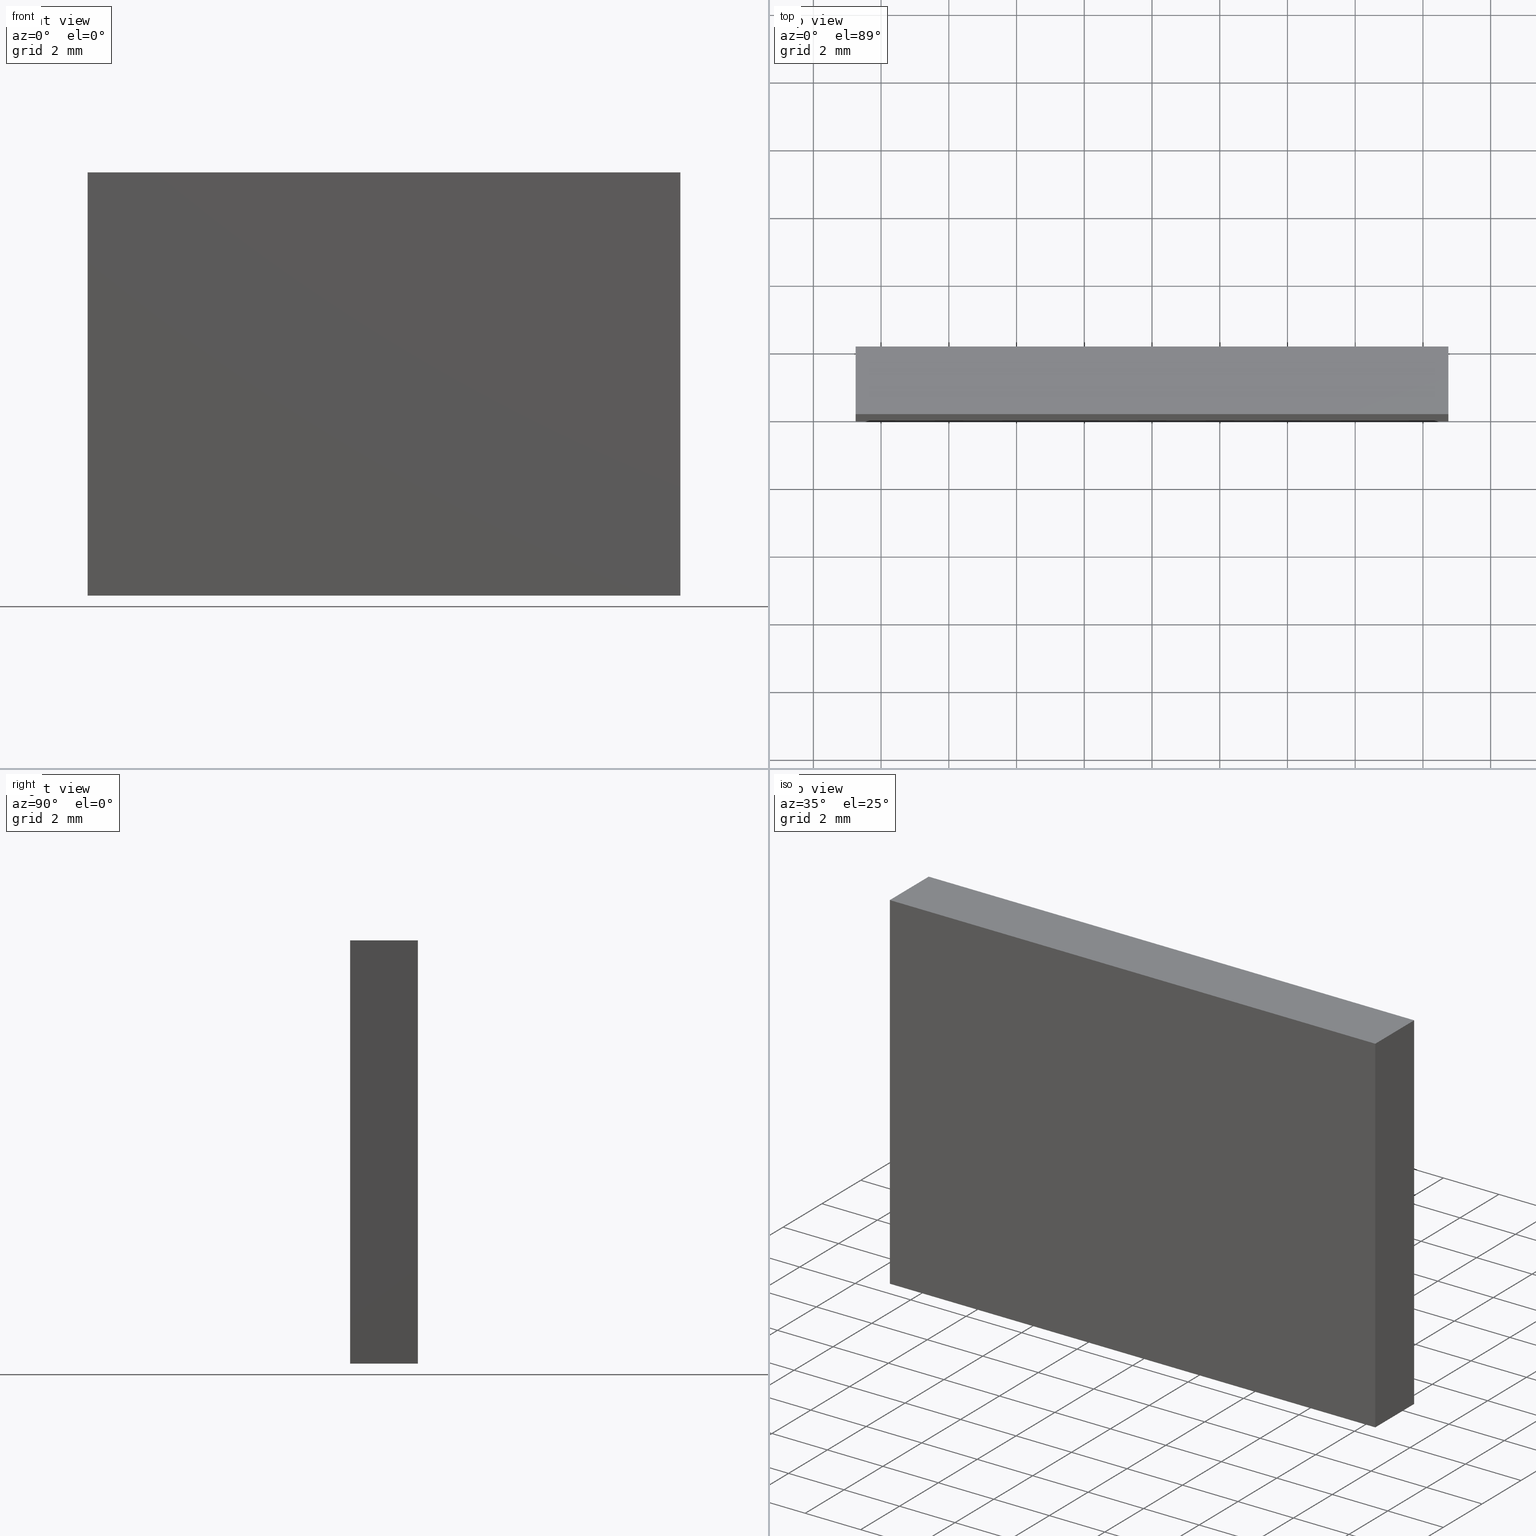
[diagram: canonical four-view strip — front | top / right | iso, engineering-drawing reading convention]
A machine part, canonical four-view strip (front | top / right | iso — engineering-drawing reading convention). The complete STEP part file that produces these views, byte-faithful:
ISO-10303-21;
HEADER;
FILE_DESCRIPTION (( 'STEP AP214' ),
    '1' );
FILE_NAME ('238510.STEP',
    '2019-07-31T06:16:45',
    ( 'user' ),
    ( '΢���й�' ),
    'SwSTEP 2.0',
    'SolidWorks 2016',
    '' );
FILE_SCHEMA (( 'AUTOMOTIVE_DESIGN' ));
ENDSEC;

DATA;
#1 = COLOUR_RGB ( '',1.000000000000000000, 1.000000000000000000, 1.000000000000000000 ) ;
#2 = PRESENTATION_LAYER_ASSIGNMENT (  '', '', ( #133 ) ) ;
#3 = FACE_OUTER_BOUND ( 'NONE', #153, .T. ) ;
#4 = VECTOR ( 'NONE', #81, 1000.000000000000000 ) ;
#5 = ADVANCED_FACE ( 'NONE', ( #33 ), #50, .F. ) ;
#6 = EDGE_CURVE ( 'NONE', #183, #89, #74, .T. ) ;
#7 =( NAMED_UNIT ( * ) PLANE_ANGLE_UNIT ( ) SI_UNIT ( $, .RADIAN. ) );
#8 = CARTESIAN_POINT ( 'NONE',  ( 8.749999999999998200, 0.0000000000000000000, -6.250000000000001800 ) ) ;
#9 = VECTOR ( 'NONE', #147, 1000.000000000000000 ) ;
#10 = DIRECTION ( 'NONE',  ( -1.000000000000000000, -0.0000000000000000000, -0.0000000000000000000 ) ) ;
#11 = PLANE ( 'NONE',  #125 ) ;
#12 = CARTESIAN_POINT ( 'NONE',  ( 0.0000000000000000000, 2.000000000000000000, 0.0000000000000000000 ) ) ;
#13 = EDGE_CURVE ( 'NONE', #109, #132, #24, .T. ) ;
#14 =( NAMED_UNIT ( * ) PLANE_ANGLE_UNIT ( ) SI_UNIT ( $, .RADIAN. ) );
#15 = PRODUCT_DEFINITION_SHAPE ( 'NONE', 'NONE',  #152 ) ;
#16 = DIRECTION ( 'NONE',  ( -1.000000000000000000, 0.0000000000000000000, 2.775557561562891400E-016 ) ) ;
#17 =( GEOMETRIC_REPRESENTATION_CONTEXT ( 3 ) GLOBAL_UNCERTAINTY_ASSIGNED_CONTEXT ( ( #171 ) ) GLOBAL_UNIT_ASSIGNED_CONTEXT ( ( #130, #14, #116 ) ) REPRESENTATION_CONTEXT ( 'NONE', 'WORKASPACE' ) );
#18 = ORIENTED_EDGE ( 'NONE', *, *, #42, .F. ) ;
#19 = VECTOR ( 'NONE', #115, 1000.000000000000000 ) ;
#20 = ORIENTED_EDGE ( 'NONE', *, *, #42, .T. ) ;
#21 = ORIENTED_EDGE ( 'NONE', *, *, #66, .T. ) ;
#22 = AXIS2_PLACEMENT_3D ( 'NONE', #103, #190, #82 ) ;
#23 =( NAMED_UNIT ( * ) PLANE_ANGLE_UNIT ( ) SI_UNIT ( $, .RADIAN. ) );
#24 = LINE ( 'NONE', #84, #37 ) ;
#25 = AXIS2_PLACEMENT_3D ( 'NONE', #12, #188, #80 ) ;
#26 = CARTESIAN_POINT ( 'NONE',  ( -8.750000000000001800, 2.000000000000000000, -6.250000000000001800 ) ) ;
#27 = ADVANCED_FACE ( 'NONE', ( #91 ), #149, .F. ) ;
#28 = DIRECTION ( 'NONE',  ( -0.0000000000000000000, -1.000000000000000000, -0.0000000000000000000 ) ) ;
#29 = CARTESIAN_POINT ( 'NONE',  ( -8.750000000000000000, 2.000000000000000000, 6.249999999999998200 ) ) ;
#30 = PRESENTATION_STYLE_ASSIGNMENT (( #31 ) ) ;
#31 = SURFACE_STYLE_USAGE ( .BOTH. , #49 ) ;
#32 = CARTESIAN_POINT ( 'NONE',  ( -8.750000000000001800, 2.000000000000000000, -6.250000000000001800 ) ) ;
#33 = FACE_OUTER_BOUND ( 'NONE', #164, .T. ) ;
#34 = ORIENTED_EDGE ( 'NONE', *, *, #195, .F. ) ;
#35 = MANIFOLD_SOLID_BREP ( '͹̨-����1', #41 ) ;
#36 = FACE_OUTER_BOUND ( 'NONE', #185, .T. ) ;
#37 = VECTOR ( 'NONE', #51, 1000.000000000000000 ) ;
#38 = SURFACE_STYLE_FILL_AREA ( #59 ) ;
#39 = ORIENTED_EDGE ( 'NONE', *, *, #195, .T. ) ;
#40 = VECTOR ( 'NONE', #10, 1000.000000000000000 ) ;
#41 = CLOSED_SHELL ( 'NONE', ( #5, #140, #158, #97, #70, #27 ) ) ;
#42 = EDGE_CURVE ( 'NONE', #132, #167, #54, .T. ) ;
#43 = SURFACE_STYLE_USAGE ( .BOTH. , #156 ) ;
#44 = DIRECTION ( 'NONE',  ( -0.0000000000000000000, -1.000000000000000000, -0.0000000000000000000 ) ) ;
#45 = DIRECTION ( 'NONE',  ( 1.000000000000000000, 0.0000000000000000000, 0.0000000000000000000 ) ) ;
#46 = CARTESIAN_POINT ( 'NONE',  ( 8.750000000000000000, 0.0000000000000000000, 6.249999999999998200 ) ) ;
#47 = CARTESIAN_POINT ( 'NONE',  ( 8.749999999999998200, 2.000000000000000000, -6.250000000000001800 ) ) ;
#48 = DIRECTION ( 'NONE',  ( 1.000000000000000000, 0.0000000000000000000, 0.0000000000000000000 ) ) ;
#49 = SURFACE_SIDE_STYLE ('',( #119 ) ) ;
#50 = PLANE ( 'NONE',  #58 ) ;
#51 = DIRECTION ( 'NONE',  ( -0.0000000000000000000, -1.000000000000000000, -0.0000000000000000000 ) ) ;
#52 = EDGE_CURVE ( 'NONE', #96, #183, #83, .T. ) ;
#53 = LINE ( 'NONE', #157, #134 ) ;
#54 = LINE ( 'NONE', #102, #4 ) ;
#55 = UNCERTAINTY_MEASURE_WITH_UNIT (LENGTH_MEASURE( 1.000000000000000100E-005 ), #141, 'distance_accuracy_value', 'NONE');
#56 = MECHANICAL_DESIGN_GEOMETRIC_PRESENTATION_REPRESENTATION (  '', ( #133 ), #17 ) ;
#57 = FACE_OUTER_BOUND ( 'NONE', #79, .T. ) ;
#58 = AXIS2_PLACEMENT_3D ( 'NONE', #75, #16, #104 ) ;
#59 = FILL_AREA_STYLE ('',( #143 ) ) ;
#60 = ORIENTED_EDGE ( 'NONE', *, *, #6, .F. ) ;
#61 = LINE ( 'NONE', #63, #110 ) ;
#62 = CARTESIAN_POINT ( 'NONE',  ( -8.750000000000001800, 2.000000000000000000, -6.250000000000001800 ) ) ;
#63 = CARTESIAN_POINT ( 'NONE',  ( 8.749999999999998200, 2.000000000000000000, -6.250000000000001800 ) ) ;
#64 = EDGE_CURVE ( 'NONE', #89, #109, #69, .T. ) ;
#65 = EDGE_LOOP ( 'NONE', ( #113, #34, #68, #150 ) ) ;
#66 = EDGE_CURVE ( 'NONE', #168, #136, #138, .T. ) ;
#67 = ORIENTED_EDGE ( 'NONE', *, *, #13, .T. ) ;
#68 = ORIENTED_EDGE ( 'NONE', *, *, #52, .F. ) ;
#69 = LINE ( 'NONE', #189, #179 ) ;
#70 = ADVANCED_FACE ( 'NONE', ( #57 ), #118, .T. ) ;
#71 = ADVANCED_BREP_SHAPE_REPRESENTATION ( '238510', ( #35, #161 ), #85 ) ;
#72 = APPLICATION_PROTOCOL_DEFINITION ( 'draft international standard', 'automotive_design', 1998, #182 ) ;
#73 = EDGE_CURVE ( 'NONE', #96, #167, #145, .T. ) ;
#74 = LINE ( 'NONE', #32, #177 ) ;
#75 = CARTESIAN_POINT ( 'NONE',  ( 8.749999999999998200, 2.000000000000000000, -6.250000000000001800 ) ) ;
#76 = CARTESIAN_POINT ( 'NONE',  ( -8.750000000000001800, 0.0000000000000000000, -6.250000000000001800 ) ) ;
#77 = CARTESIAN_POINT ( 'NONE',  ( -8.750000000000001800, 0.0000000000000000000, -6.250000000000001800 ) ) ;
#78 = DIRECTION ( 'NONE',  ( -1.000000000000000000, 0.0000000000000000000, -0.0000000000000000000 ) ) ;
#79 = EDGE_LOOP ( 'NONE', ( #200, #170, #122, #191 ) ) ;
#80 = DIRECTION ( 'NONE',  ( 0.0000000000000000000, -0.0000000000000000000, 1.000000000000000000 ) ) ;
#81 = DIRECTION ( 'NONE',  ( -2.775557561562891400E-016, -0.0000000000000000000, -1.000000000000000000 ) ) ;
#82 = DIRECTION ( 'NONE',  ( 0.0000000000000000000, -0.0000000000000000000, 1.000000000000000000 ) ) ;
#83 = LINE ( 'NONE', #176, #99 ) ;
#84 = CARTESIAN_POINT ( 'NONE',  ( 8.750000000000000000, 2.000000000000000000, 6.249999999999998200 ) ) ;
#85 =( GEOMETRIC_REPRESENTATION_CONTEXT ( 3 ) GLOBAL_UNCERTAINTY_ASSIGNED_CONTEXT ( ( #117 ) ) GLOBAL_UNIT_ASSIGNED_CONTEXT ( ( #124, #7, #112 ) ) REPRESENTATION_CONTEXT ( 'NONE', 'WORKASPACE' ) );
#86 = ORIENTED_EDGE ( 'NONE', *, *, #142, .F. ) ;
#87 = MECHANICAL_DESIGN_GEOMETRIC_PRESENTATION_REPRESENTATION (  '', ( #202 ), #101 ) ;
#88 = EDGE_CURVE ( 'NONE', #109, #96, #61, .T. ) ;
#89 = VERTEX_POINT ( 'NONE', #29 ) ;
#90 = VECTOR ( 'NONE', #44, 1000.000000000000000 ) ;
#91 = FACE_OUTER_BOUND ( 'NONE', #105, .T. ) ;
#92 = PRODUCT_CONTEXT ( 'NONE', #172, 'mechanical' ) ;
#93 = APPLICATION_PROTOCOL_DEFINITION ( 'draft international standard', 'automotive_design', 1998, #172 ) ;
#94 = CARTESIAN_POINT ( 'NONE',  ( -8.750000000000001800, 2.000000000000000000, -6.250000000000001800 ) ) ;
#95 = AXIS2_PLACEMENT_3D ( 'NONE', #26, #114, #197 ) ;
#96 = VERTEX_POINT ( 'NONE', #127 ) ;
#97 = ADVANCED_FACE ( 'NONE', ( #3 ), #199, .F. ) ;
#98 = DIRECTION ( 'NONE',  ( 0.0000000000000000000, 0.0000000000000000000, 1.000000000000000000 ) ) ;
#99 = VECTOR ( 'NONE', #162, 1000.000000000000000 ) ;
#100 = CARTESIAN_POINT ( 'NONE',  ( -8.750000000000000000, 2.000000000000000000, 6.249999999999998200 ) ) ;
#101 =( GEOMETRIC_REPRESENTATION_CONTEXT ( 3 ) GLOBAL_UNCERTAINTY_ASSIGNED_CONTEXT ( ( #55 ) ) GLOBAL_UNIT_ASSIGNED_CONTEXT ( ( #141, #23, #123 ) ) REPRESENTATION_CONTEXT ( 'NONE', 'WORKASPACE' ) );
#102 = CARTESIAN_POINT ( 'NONE',  ( 8.749999999999998200, 0.0000000000000000000, -6.250000000000001800 ) ) ;
#103 = CARTESIAN_POINT ( 'NONE',  ( 0.0000000000000000000, 0.0000000000000000000, 0.0000000000000000000 ) ) ;
#104 = DIRECTION ( 'NONE',  ( 2.775557561562891400E-016, 0.0000000000000000000, 1.000000000000000000 ) ) ;
#105 = EDGE_LOOP ( 'NONE', ( #18, #86, #107, #144 ) ) ;
#106 = FACE_OUTER_BOUND ( 'NONE', #65, .T. ) ;
#107 = ORIENTED_EDGE ( 'NONE', *, *, #66, .F. ) ;
#108 = AXIS2_PLACEMENT_3D ( 'NONE', #100, #187, #78 ) ;
#109 = VERTEX_POINT ( 'NONE', #160 ) ;
#110 = VECTOR ( 'NONE', #175, 1000.000000000000000 ) ;
#111 = DIRECTION ( 'NONE',  ( 0.0000000000000000000, 0.0000000000000000000, 1.000000000000000000 ) ) ;
#112 =( NAMED_UNIT ( * ) SI_UNIT ( $, .STERADIAN. ) SOLID_ANGLE_UNIT ( ) );
#113 = ORIENTED_EDGE ( 'NONE', *, *, #148, .T. ) ;
#114 = DIRECTION ( 'NONE',  ( 1.000000000000000000, 0.0000000000000000000, -1.387778780781445700E-016 ) ) ;
#115 = DIRECTION ( 'NONE',  ( 1.387778780781445700E-016, 0.0000000000000000000, 1.000000000000000000 ) ) ;
#116 =( NAMED_UNIT ( * ) SI_UNIT ( $, .STERADIAN. ) SOLID_ANGLE_UNIT ( ) );
#117 = UNCERTAINTY_MEASURE_WITH_UNIT (LENGTH_MEASURE( 1.000000000000000100E-005 ), #124, 'distance_accuracy_value', 'NONE');
#118 = PLANE ( 'NONE',  #25 ) ;
#119 = SURFACE_STYLE_FILL_AREA ( #163 ) ;
#120 = EDGE_CURVE ( 'NONE', #89, #136, #181, .T. ) ;
#121 = ORIENTED_EDGE ( 'NONE', *, *, #120, .T. ) ;
#122 = ORIENTED_EDGE ( 'NONE', *, *, #6, .T. ) ;
#123 =( NAMED_UNIT ( * ) SI_UNIT ( $, .STERADIAN. ) SOLID_ANGLE_UNIT ( ) );
#124 =( LENGTH_UNIT ( ) NAMED_UNIT ( * ) SI_UNIT ( .MILLI., .METRE. ) );
#125 = AXIS2_PLACEMENT_3D ( 'NONE', #198, #98, #186 ) ;
#126 = ORIENTED_EDGE ( 'NONE', *, *, #73, .F. ) ;
#127 = CARTESIAN_POINT ( 'NONE',  ( 8.749999999999998200, 2.000000000000000000, -6.250000000000001800 ) ) ;
#128 = PRODUCT_RELATED_PRODUCT_CATEGORY ( 'part', '', ( #178 ) ) ;
#129 = CARTESIAN_POINT ( 'NONE',  ( -8.750000000000001800, 0.0000000000000000000, -6.250000000000001800 ) ) ;
#130 =( LENGTH_UNIT ( ) NAMED_UNIT ( * ) SI_UNIT ( .MILLI., .METRE. ) );
#131 = DIRECTION ( 'NONE',  ( 1.387778780781445700E-016, 0.0000000000000000000, 1.000000000000000000 ) ) ;
#132 = VERTEX_POINT ( 'NONE', #46 ) ;
#133 = STYLED_ITEM ( 'NONE', ( #30 ), #35 ) ;
#134 = VECTOR ( 'NONE', #45, 1000.000000000000000 ) ;
#135 = VECTOR ( 'NONE', #28, 1000.000000000000000 ) ;
#136 = VERTEX_POINT ( 'NONE', #146 ) ;
#137 = PRODUCT_DEFINITION_CONTEXT ( 'detailed design', #182, 'design' ) ;
#138 = LINE ( 'NONE', #129, #19 ) ;
#139 = PRODUCT_DEFINITION_FORMATION_WITH_SPECIFIED_SOURCE ( '�κ�', '', #178, .NOT_KNOWN. ) ;
#140 = ADVANCED_FACE ( 'NONE', ( #106 ), #11, .F. ) ;
#141 =( LENGTH_UNIT ( ) NAMED_UNIT ( * ) SI_UNIT ( .MILLI., .METRE. ) );
#142 = EDGE_CURVE ( 'NONE', #136, #132, #53, .T. ) ;
#143 = FILL_AREA_STYLE_COLOUR ( '', #165 ) ;
#144 = ORIENTED_EDGE ( 'NONE', *, *, #148, .F. ) ;
#145 = LINE ( 'NONE', #47, #9 ) ;
#146 = CARTESIAN_POINT ( 'NONE',  ( -8.750000000000000000, 0.0000000000000000000, 6.249999999999998200 ) ) ;
#147 = DIRECTION ( 'NONE',  ( -0.0000000000000000000, -1.000000000000000000, -0.0000000000000000000 ) ) ;
#148 = EDGE_CURVE ( 'NONE', #167, #168, #174, .T. ) ;
#149 = PLANE ( 'NONE',  #22 ) ;
#150 = ORIENTED_EDGE ( 'NONE', *, *, #73, .T. ) ;
#151 = ORIENTED_EDGE ( 'NONE', *, *, #120, .F. ) ;
#152 = PRODUCT_DEFINITION ( 'δ֪', '', #139, #137 ) ;
#153 = EDGE_LOOP ( 'NONE', ( #166, #180, #194, #121 ) ) ;
#154 = SHAPE_DEFINITION_REPRESENTATION ( #15, #71 ) ;
#155 = ORIENTED_EDGE ( 'NONE', *, *, #88, .F. ) ;
#156 = SURFACE_SIDE_STYLE ('',( #38 ) ) ;
#157 = CARTESIAN_POINT ( 'NONE',  ( -8.750000000000000000, 0.0000000000000000000, 6.249999999999998200 ) ) ;
#158 = ADVANCED_FACE ( 'NONE', ( #36 ), #173, .F. ) ;
#159 = CARTESIAN_POINT ( 'NONE',  ( -8.750000000000000000, 2.000000000000000000, 6.249999999999998200 ) ) ;
#160 = CARTESIAN_POINT ( 'NONE',  ( 8.750000000000000000, 2.000000000000000000, 6.249999999999998200 ) ) ;
#161 = AXIS2_PLACEMENT_3D ( 'NONE', #184, #111, #193 ) ;
#162 = DIRECTION ( 'NONE',  ( -1.000000000000000000, -0.0000000000000000000, -0.0000000000000000000 ) ) ;
#163 = FILL_AREA_STYLE ('',( #201 ) ) ;
#164 = EDGE_LOOP ( 'NONE', ( #20, #126, #155, #67 ) ) ;
#165 = COLOUR_RGB ( '',1.000000000000000000, 1.000000000000000000, 1.000000000000000000 ) ;
#166 = ORIENTED_EDGE ( 'NONE', *, *, #142, .T. ) ;
#167 = VERTEX_POINT ( 'NONE', #8 ) ;
#168 = VERTEX_POINT ( 'NONE', #76 ) ;
#169 = PRESENTATION_LAYER_ASSIGNMENT (  '', '', ( #202 ) ) ;
#170 = ORIENTED_EDGE ( 'NONE', *, *, #52, .T. ) ;
#171 = UNCERTAINTY_MEASURE_WITH_UNIT (LENGTH_MEASURE( 1.000000000000000100E-005 ), #130, 'distance_accuracy_value', 'NONE');
#172 = APPLICATION_CONTEXT ( 'automotive_design' ) ;
#173 = PLANE ( 'NONE',  #95 ) ;
#174 = LINE ( 'NONE', #77, #40 ) ;
#175 = DIRECTION ( 'NONE',  ( -2.775557561562891400E-016, -0.0000000000000000000, -1.000000000000000000 ) ) ;
#176 = CARTESIAN_POINT ( 'NONE',  ( -8.750000000000001800, 2.000000000000000000, -6.250000000000001800 ) ) ;
#177 = VECTOR ( 'NONE', #131, 1000.000000000000000 ) ;
#178 = PRODUCT ( '238510', '238510', '', ( #92 ) ) ;
#179 = VECTOR ( 'NONE', #48, 1000.000000000000000 ) ;
#180 = ORIENTED_EDGE ( 'NONE', *, *, #13, .F. ) ;
#181 = LINE ( 'NONE', #159, #135 ) ;
#182 = APPLICATION_CONTEXT ( 'automotive_design' ) ;
#183 = VERTEX_POINT ( 'NONE', #94 ) ;
#184 = CARTESIAN_POINT ( 'NONE',  ( 0.0000000000000000000, 0.0000000000000000000, 0.0000000000000000000 ) ) ;
#185 = EDGE_LOOP ( 'NONE', ( #21, #151, #60, #39 ) ) ;
#186 = DIRECTION ( 'NONE',  ( 1.000000000000000000, 0.0000000000000000000, -0.0000000000000000000 ) ) ;
#187 = DIRECTION ( 'NONE',  ( 0.0000000000000000000, 0.0000000000000000000, -1.000000000000000000 ) ) ;
#188 = DIRECTION ( 'NONE',  ( 0.0000000000000000000, 1.000000000000000000, 0.0000000000000000000 ) ) ;
#189 = CARTESIAN_POINT ( 'NONE',  ( -8.750000000000000000, 2.000000000000000000, 6.249999999999998200 ) ) ;
#190 = DIRECTION ( 'NONE',  ( 0.0000000000000000000, 1.000000000000000000, 0.0000000000000000000 ) ) ;
#191 = ORIENTED_EDGE ( 'NONE', *, *, #64, .T. ) ;
#192 = LINE ( 'NONE', #62, #90 ) ;
#193 = DIRECTION ( 'NONE',  ( 1.000000000000000000, 0.0000000000000000000, 0.0000000000000000000 ) ) ;
#194 = ORIENTED_EDGE ( 'NONE', *, *, #64, .F. ) ;
#195 = EDGE_CURVE ( 'NONE', #183, #168, #192, .T. ) ;
#196 = PRESENTATION_STYLE_ASSIGNMENT (( #43 ) ) ;
#197 = DIRECTION ( 'NONE',  ( -1.387778780781445700E-016, 0.0000000000000000000, -1.000000000000000000 ) ) ;
#198 = CARTESIAN_POINT ( 'NONE',  ( -8.750000000000001800, 2.000000000000000000, -6.250000000000001800 ) ) ;
#199 = PLANE ( 'NONE',  #108 ) ;
#200 = ORIENTED_EDGE ( 'NONE', *, *, #88, .T. ) ;
#201 = FILL_AREA_STYLE_COLOUR ( '', #1 ) ;
#202 = STYLED_ITEM ( 'NONE', ( #196 ), #71 ) ;
ENDSEC;
END-ISO-10303-21;
